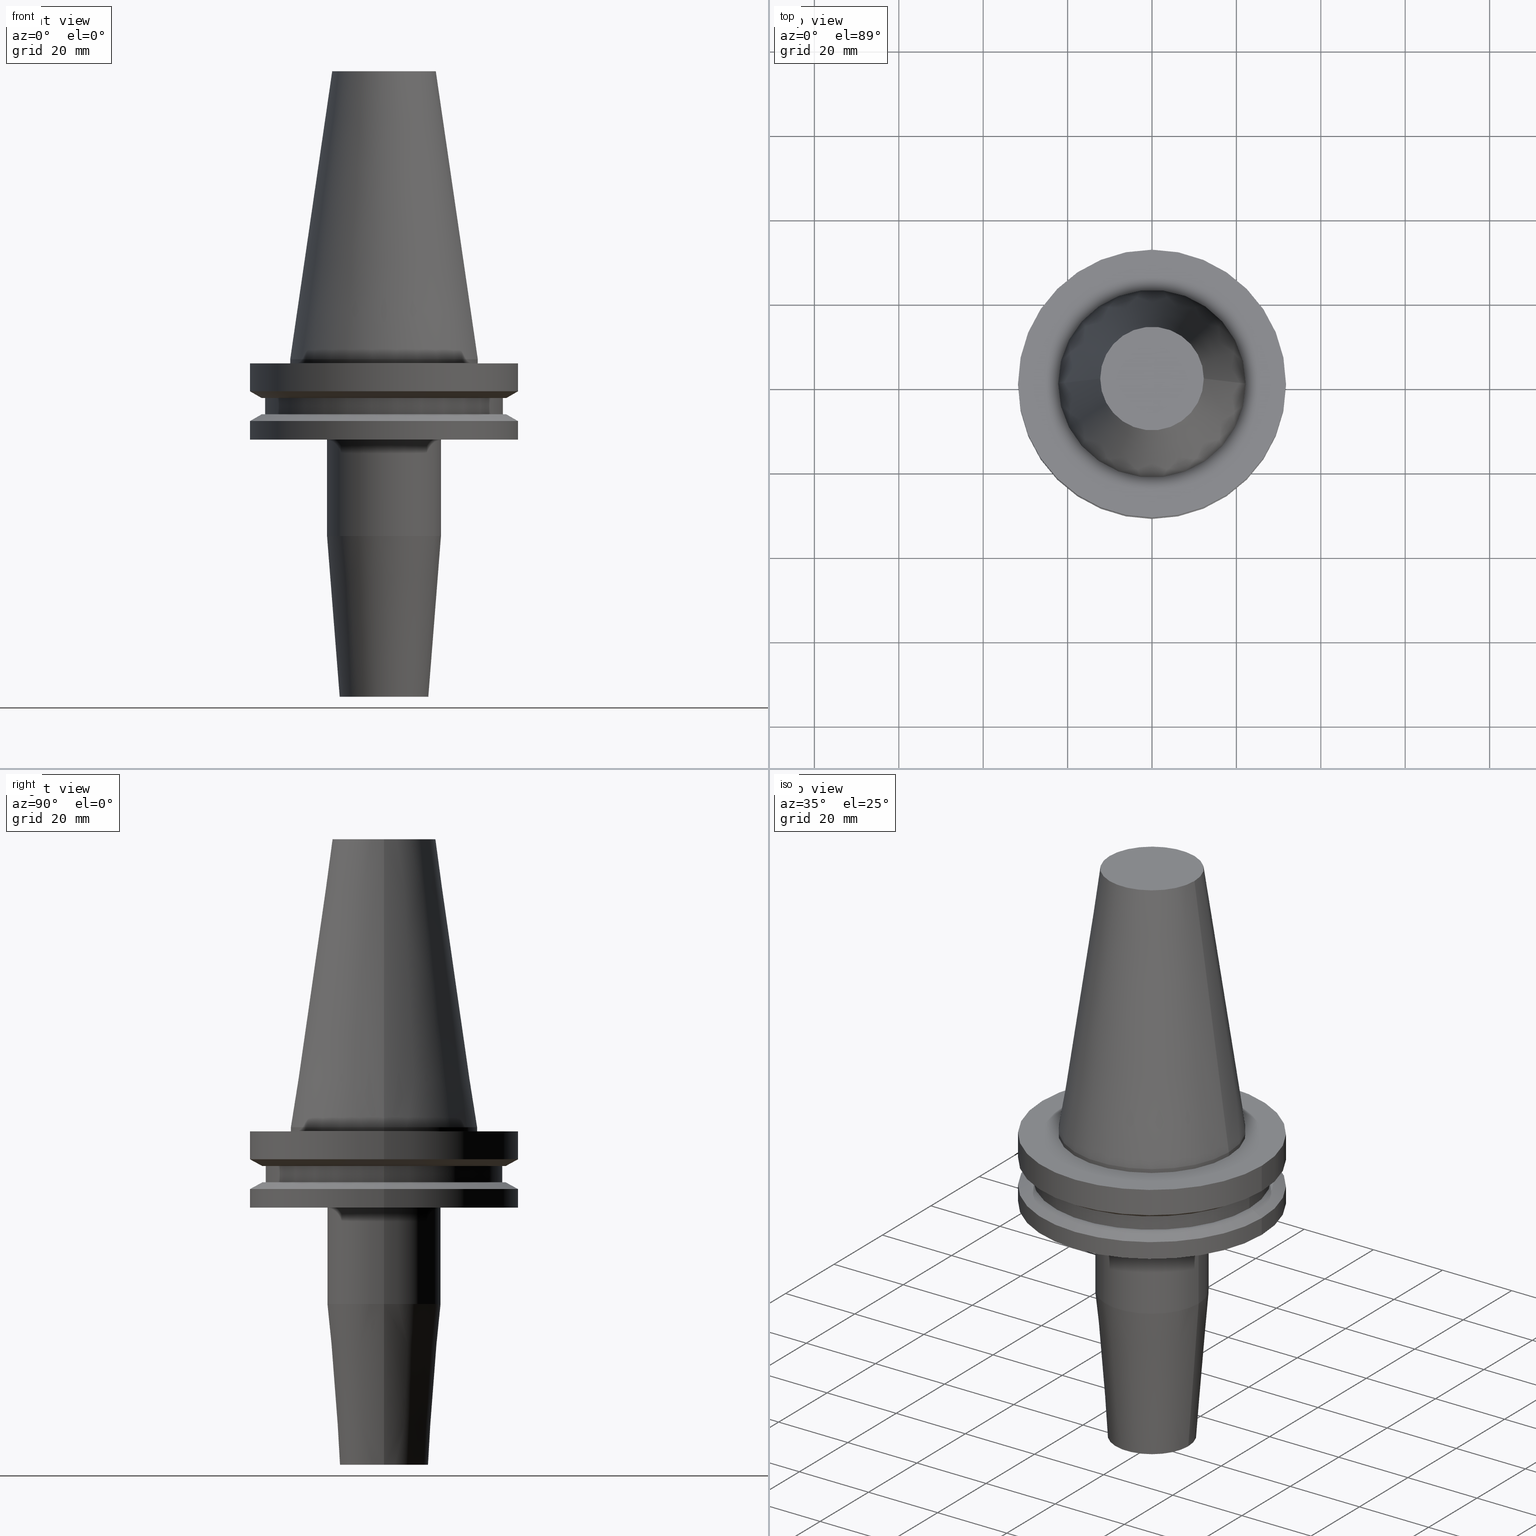
[diagram: canonical four-view strip — front | top / right | iso, engineering-drawing reading convention]
A machine part, canonical four-view strip (front | top / right | iso — engineering-drawing reading convention). The complete STEP part file that produces these views, byte-faithful:
ISO-10303-21;
HEADER;
FILE_DESCRIPTION (( 'STEP AP203' ),
    '1' );
FILE_NAME ('BCV40-SF8-80.stp',
    '2022-02-23T17:12:58',
    ( '' ),
    ( '' ),
    'SwSTEP 2.0',
    'SolidWorks 2021',
    '' );
FILE_SCHEMA (( 'CONFIG_CONTROL_DESIGN' ));
ENDSEC;

DATA;
#1 = DIRECTION ( 'NONE',  ( 0.8660254037844387076, 1.060575238724906915E-16, -0.4999999999999998890 ) ) ;
#2 = VERTEX_POINT ( 'NONE', #262 ) ;
#3 = CARTESIAN_POINT ( 'NONE',  ( 0.000000000000000000, 0.000000000000000000, -9.204999999999991189 ) ) ;
#4 = PRODUCT_DEFINITION_FORMATION_WITH_SPECIFIED_SOURCE ( 'ANY', '', #571, .NOT_KNOWN. ) ;
#5 = CIRCLE ( 'NONE', #444, 13.49999999999999467 ) ;
#6 = CARTESIAN_POINT ( 'NONE',  ( 31.75000000000000000, 3.888253587292846476E-15, -14.65472339340266572 ) ) ;
#7 = AXIS2_PLACEMENT_3D ( 'NONE', #565, #741, #19 ) ;
#8 = EDGE_LOOP ( 'NONE', ( #357, #448, #562, #697 ) ) ;
#9 = DIRECTION ( 'NONE',  ( 1.000000000000000000, 0.000000000000000000, 0.000000000000000000 ) ) ;
#10 = PERSON_AND_ORGANIZATION_ROLE ( 'classification_officer' ) ;
#11 = ADVANCED_FACE ( 'NONE', ( #566 ), #746, .F. ) ;
#12 = DIRECTION ( 'NONE',  ( -0.000000000000000000, -0.000000000000000000, 1.000000000000000000 ) ) ;
#13 = ORIENTED_EDGE ( 'NONE', *, *, #487, .F. ) ;
#14 = FACE_OUTER_BOUND ( 'NONE', #679, .T. ) ;
#15 = DIRECTION ( 'NONE',  ( -1.000000000000000000, 0.000000000000000000, -0.000000000000000000 ) ) ;
#16 = VERTEX_POINT ( 'NONE', #629 ) ;
#17 = DIRECTION ( 'NONE',  ( -0.000000000000000000, -0.000000000000000000, 1.000000000000000000 ) ) ;
#18 = AXIS2_PLACEMENT_3D ( 'NONE', #373, #141, #370 ) ;
#19 = DIRECTION ( 'NONE',  ( 1.000000000000000000, 0.000000000000000000, 0.000000000000000000 ) ) ;
#20 = EDGE_CURVE ( 'NONE', #760, #604, #94, .T. ) ;
#21 = AXIS2_PLACEMENT_3D ( 'NONE', #207, #222, #399 ) ;
#22 = EDGE_LOOP ( 'NONE', ( #83, #595, #382, #346 ) ) ;
#23 = CIRCLE ( 'NONE', #214, 31.75000000000000000 ) ;
#24 = SECURITY_CLASSIFICATION ( '', '', #198 ) ;
#25 = EDGE_CURVE ( 'NONE', #659, #332, #46, .T. ) ;
#26 = DIRECTION ( 'NONE',  ( 0.000000000000000000, -0.000000000000000000, 1.000000000000000000 ) ) ;
#27 = COORDINATED_UNIVERSAL_TIME_OFFSET ( 6, 0, .BEHIND. ) ;
#28 = CARTESIAN_POINT ( 'NONE',  ( 0.000000000000000000, 0.000000000000000000, -13.05499999999999794 ) ) ;
#29 = EDGE_LOOP ( 'NONE', ( #432, #270, #37, #229 ) ) ;
#30 = CYLINDRICAL_SURFACE ( 'NONE', #705, 22.22500000000000142 ) ;
#31 = DATE_AND_TIME ( #739, #119 ) ;
#32 = CARTESIAN_POINT ( 'NONE',  ( 0.000000000000000000, 0.000000000000000000, 0.000000000000000000 ) ) ;
#33 = ORIENTED_EDGE ( 'NONE', *, *, #138, .F. ) ;
#34 = DIRECTION ( 'NONE',  ( 1.000000000000000000, 0.000000000000000000, 0.000000000000000000 ) ) ;
#35 = AXIS2_PLACEMENT_3D ( 'NONE', #358, #543, #239 ) ;
#36 = CARTESIAN_POINT ( 'NONE',  ( 0.000000000000000000, 0.000000000000000000, 68.25000000000000000 ) ) ;
#37 = ORIENTED_EDGE ( 'NONE', *, *, #153, .F. ) ;
#38 = CIRCLE ( 'NONE', #101, 12.27178102086201150 ) ;
#39 = CYLINDRICAL_SURFACE ( 'NONE', #313, 31.75000000000000000 ) ;
#40 = EDGE_CURVE ( 'NONE', #170, #693, #245, .T. ) ;
#41 = ORIENTED_EDGE ( 'NONE', *, *, #204, .F. ) ;
#42 = VERTEX_POINT ( 'NONE', #396 ) ;
#43 = DIRECTION ( 'NONE',  ( 0.000000000000000000, 0.000000000000000000, 1.000000000000000000 ) ) ;
#44 = EDGE_CURVE ( 'NONE', #170, #554, #336, .T. ) ;
#45 = CARTESIAN_POINT ( 'NONE',  ( 0.000000000000000000, 0.000000000000000000, -9.204999999999991189 ) ) ;
#46 = LINE ( 'NONE', #636, #588 ) ;
#47 = ORIENTED_EDGE ( 'NONE', *, *, #681, .T. ) ;
#48 = CC_DESIGN_APPROVAL ( #187, ( #633 ) ) ;
#49 = CARTESIAN_POINT ( 'NONE',  ( 0.000000000000000000, 0.000000000000000000, 68.25000000000000000 ) ) ;
#50 = LINE ( 'NONE', #520, #110 ) ;
#51 = ORIENTED_EDGE ( 'NONE', *, *, #204, .T. ) ;
#52 = FACE_OUTER_BOUND ( 'NONE', #103, .T. ) ;
#53 = ORIENTED_EDGE ( 'NONE', *, *, #704, .T. ) ;
#54 = ADVANCED_FACE ( 'NONE', ( #305 ), #236, .F. ) ;
#55 = EDGE_CURVE ( 'NONE', #42, #63, #601, .T. ) ;
#56 = DIRECTION ( 'NONE',  ( 1.000000000000000000, 0.000000000000000000, 0.000000000000000000 ) ) ;
#57 = AXIS2_PLACEMENT_3D ( 'NONE', #130, #546, #362 ) ;
#58 = ORIENTED_EDGE ( 'NONE', *, *, #605, .T. ) ;
#59 = CIRCLE ( 'NONE', #755, 3.999999999999991562 ) ;
#60 = PERSON_AND_ORGANIZATION_ROLE ( 'design_owner' ) ;
#61 = CIRCLE ( 'NONE', #492, 28.97919780457008088 ) ;
#62 = DIRECTION ( 'NONE',  ( -0.000000000000000000, -0.000000000000000000, 1.000000000000000000 ) ) ;
#63 = VERTEX_POINT ( 'NONE', #188 ) ;
#64 = DIRECTION ( 'NONE',  ( 0.000000000000000000, -0.000000000000000000, 1.000000000000000000 ) ) ;
#65 = EDGE_LOOP ( 'NONE', ( #369, #109, #196, #389 ) ) ;
#66 = CARTESIAN_POINT ( 'NONE',  ( 0.000000000000000000, 0.000000000000000000, -1.000000000000000888 ) ) ;
#67 = CYLINDRICAL_SURFACE ( 'NONE', #314, 28.17999999999999972 ) ;
#68 = EDGE_LOOP ( 'NONE', ( #238, #51, #242, #742 ) ) ;
#69 = DIRECTION ( 'NONE',  ( 0.07845909572783768549, 0.000000000000000000, 0.9969173337331286300 ) ) ;
#70 = ADVANCED_FACE ( 'NONE', ( #735 ), #324, .T. ) ;
#71 = APPROVAL_STATUS ( 'not_yet_approved' ) ;
#72 = VECTOR ( 'NONE', #172, 1000.000000000000000 ) ;
#73 = LINE ( 'NONE', #708, #491 ) ;
#74 = ORIENTED_EDGE ( 'NONE', *, *, #160, .T. ) ;
#75 = FACE_OUTER_BOUND ( 'NONE', #612, .T. ) ;
#76 = DIRECTION ( 'NONE',  ( -0.000000000000000000, -0.000000000000000000, 1.000000000000000000 ) ) ;
#77 = VERTEX_POINT ( 'NONE', #121 ) ;
#78 = FACE_OUTER_BOUND ( 'NONE', #99, .T. ) ;
#79 = EDGE_CURVE ( 'NONE', #284, #186, #285, .T. ) ;
#80 = APPROVAL_DATE_TIME ( #302, #106 ) ;
#81 = CYLINDRICAL_SURFACE ( 'NONE', #7, 13.49999999999999467 ) ;
#82 = EDGE_CURVE ( 'NONE', #63, #317, #551, .T. ) ;
#83 = ORIENTED_EDGE ( 'NONE', *, *, #487, .T. ) ;
#84 = CARTESIAN_POINT ( 'NONE',  ( -31.74999999999999289, 3.888253587292845687E-15, -19.04999999999999716 ) ) ;
#85 = AXIS2_PLACEMENT_3D ( 'NONE', #105, #516, #217 ) ;
#86 = DIRECTION ( 'NONE',  ( 1.000000000000000000, 0.000000000000000000, 0.000000000000000000 ) ) ;
#87 = AXIS2_PLACEMENT_3D ( 'NONE', #401, #574, #102 ) ;
#88 = ORIENTED_EDGE ( 'NONE', *, *, #630, .T. ) ;
#89 = CARTESIAN_POINT ( 'NONE',  ( 0.000000000000000000, 0.000000000000000000, 68.25000000000000000 ) ) ;
#90 = CARTESIAN_POINT ( 'NONE',  ( 0.000000000000000000, 31.75000000000000000, -0.9999999999999995559 ) ) ;
#91 = EDGE_LOOP ( 'NONE', ( #252, #246 ) ) ;
#92 = DIRECTION ( 'NONE',  ( 0.000000000000000000, -0.000000000000000000, 1.000000000000000000 ) ) ;
#93 = FACE_OUTER_BOUND ( 'NONE', #91, .T. ) ;
#94 = LINE ( 'NONE', #162, #221 ) ;
#95 = CARTESIAN_POINT ( 'NONE',  ( 0.000000000000000000, 0.000000000000000000, 0.000000000000000000 ) ) ;
#96 = CIRCLE ( 'NONE', #296, 28.17999999999999972 ) ;
#97 = EDGE_CURVE ( 'NONE', #645, #484, #614, .T. ) ;
#98 = DIRECTION ( 'NONE',  ( -0.000000000000000000, -0.000000000000000000, 1.000000000000000000 ) ) ;
#99 = EDGE_LOOP ( 'NONE', ( #47, #424 ) ) ;
#100 = AXIS2_PLACEMENT_3D ( 'NONE', #90, #548, #15 ) ;
#101 = AXIS2_PLACEMENT_3D ( 'NONE', #428, #440, #86 ) ;
#102 = DIRECTION ( 'NONE',  ( -1.000000000000000000, 0.000000000000000000, 0.000000000000000000 ) ) ;
#103 = EDGE_LOOP ( 'NONE', ( #235, #765, #754, #256 ) ) ;
#104 = CARTESIAN_POINT ( 'NONE',  ( 0.000000000000000000, 0.000000000000000000, 0.000000000000000000 ) ) ;
#105 = CARTESIAN_POINT ( 'NONE',  ( 0.000000000000000000, 0.000000000000000000, -1.000000000000000888 ) ) ;
#106 = APPROVAL ( #71, 'UNSPECIFIED' ) ;
#107 = DIRECTION ( 'NONE',  ( 1.000000000000000000, 0.000000000000000000, 0.000000000000000000 ) ) ;
#108 = DIRECTION ( 'NONE',  ( 1.000000000000000000, 0.000000000000000000, 0.000000000000000000 ) ) ;
#109 = ORIENTED_EDGE ( 'NONE', *, *, #55, .T. ) ;
#110 = VECTOR ( 'NONE', #762, 1000.000000000000000 ) ;
#111 = LINE ( 'NONE', #511, #288 ) ;
#112 = FACE_OUTER_BOUND ( 'NONE', #193, .T. ) ;
#113 = EDGE_LOOP ( 'NONE', ( #165, #572 ) ) ;
#114 = DIRECTION ( 'NONE',  ( 1.000000000000000000, 0.000000000000000000, 0.000000000000000000 ) ) ;
#115 = CARTESIAN_POINT ( 'NONE',  ( 28.97919780457007732, 0.000000000000000000, -9.205000000000005400 ) ) ;
#116 = CIRCLE ( 'NONE', #525, 31.74999999999999289 ) ;
#117 = VERTEX_POINT ( 'NONE', #430 ) ;
#118 = CIRCLE ( 'NONE', #542, 28.17999999999999972 ) ;
#119 = LOCAL_TIME ( 11, 12, 58.00000000000000000, #724 ) ;
#120 = DIRECTION ( 'NONE',  ( -0.000000000000000000, -0.000000000000000000, 1.000000000000000000 ) ) ;
#121 = CARTESIAN_POINT ( 'NONE',  ( 31.75000000000000000, 0.000000000000000000, -7.605276606597335842 ) ) ;
#122 = PERSON_AND_ORGANIZATION ( #178, #467 ) ;
#123 = ADVANCED_FACE ( 'NONE', ( #137 ), #232, .T. ) ;
#124 = LINE ( 'NONE', #466, #276 ) ;
#125 = VERTEX_POINT ( 'NONE', #84 ) ;
#126 = ADVANCED_FACE ( 'NONE', ( #14, #311 ), #660, .F. ) ;
#127 = DIRECTION ( 'NONE',  ( 1.000000000000000000, 0.000000000000000000, 0.000000000000000000 ) ) ;
#128 = CARTESIAN_POINT ( 'NONE',  ( 0.000000000000000000, 0.000000000000000000, -54.00000000000000711 ) ) ;
#129 = ORIENTED_EDGE ( 'NONE', *, *, #97, .T. ) ;
#130 = CARTESIAN_POINT ( 'NONE',  ( 0.000000000000000000, 0.000000000000000000, -80.00000000000000000 ) ) ;
#131 = PERSON_AND_ORGANIZATION ( #178, #467 ) ;
#132 = LOCAL_TIME ( 11, 12, 58.00000000000000000, #226 ) ;
#133 = CARTESIAN_POINT ( 'NONE',  ( 0.000000000000000000, 0.000000000000000000, -7.605276606597335842 ) ) ;
#134 = CIRCLE ( 'NONE', #267, 28.97919780457007732 ) ;
#135 = ORIENTED_EDGE ( 'NONE', *, *, #701, .F. ) ;
#136 = EDGE_CURVE ( 'NONE', #317, #287, #441, .T. ) ;
#137 = FACE_OUTER_BOUND ( 'NONE', #65, .T. ) ;
#138 = EDGE_CURVE ( 'NONE', #463, #675, #295, .T. ) ;
#139 = DIRECTION ( 'NONE',  ( -0.000000000000000000, -0.000000000000000000, 1.000000000000000000 ) ) ;
#140 = ORIENTED_EDGE ( 'NONE', *, *, #20, .T. ) ;
#141 = DIRECTION ( 'NONE',  ( -0.000000000000000000, -0.000000000000000000, 1.000000000000000000 ) ) ;
#142 = APPROVAL_ROLE ( '' ) ;
#143 = CARTESIAN_POINT ( 'NONE',  ( 0.000000000000000000, 0.000000000000000000, -1.000000000000000888 ) ) ;
#144 = ORIENTED_EDGE ( 'NONE', *, *, #153, .T. ) ;
#145 = AXIS2_PLACEMENT_3D ( 'NONE', #490, #183, #613 ) ;
#146 = CARTESIAN_POINT ( 'NONE',  ( 13.49999999999999467, 0.000000000000000000, -19.04999999999999716 ) ) ;
#147 = SHAPE_DEFINITION_REPRESENTATION ( #410, #517 ) ;
#148 = DIRECTION ( 'NONE',  ( 1.000000000000000000, 0.000000000000000000, 0.000000000000000000 ) ) ;
#149 = ORIENTED_EDGE ( 'NONE', *, *, #607, .T. ) ;
#150 = DIRECTION ( 'NONE',  ( -0.000000000000000000, -0.000000000000000000, 1.000000000000000000 ) ) ;
#151 = CARTESIAN_POINT ( 'NONE',  ( -22.22500000000000142, 2.721777511104992849E-15, 68.25000000000000000 ) ) ;
#152 = CARTESIAN_POINT ( 'NONE',  ( 0.000000000000000000, 0.000000000000000000, -13.05499999999999794 ) ) ;
#153 = EDGE_CURVE ( 'NONE', #332, #650, #96, .T. ) ;
#154 = DIRECTION ( 'NONE',  ( 1.000000000000000000, 0.000000000000000000, 0.000000000000000000 ) ) ;
#155 =( NAMED_UNIT ( * ) SI_UNIT ( $, .STERADIAN. ) SOLID_ANGLE_UNIT ( ) );
#156 = ORIENTED_EDGE ( 'NONE', *, *, #271, .F. ) ;
#157 =( NAMED_UNIT ( * ) PLANE_ANGLE_UNIT ( ) SI_UNIT ( $, .RADIAN. ) );
#158 = CARTESIAN_POINT ( 'NONE',  ( 0.000000000000000000, 12.27178102086201150, 68.25000000000000000 ) ) ;
#159 = CIRCLE ( 'NONE', #756, 31.75000000000000000 ) ;
#160 = EDGE_CURVE ( 'NONE', #320, #377, #738, .T. ) ;
#161 = ADVANCED_FACE ( 'NONE', ( #197 ), #552, .T. ) ;
#162 = CARTESIAN_POINT ( 'NONE',  ( -22.22500000000000142, 0.000000000000000000, 0.000000000000000000 ) ) ;
#163 = CARTESIAN_POINT ( 'NONE',  ( 0.000000000000000000, 0.000000000000000000, -9.205000000000005400 ) ) ;
#164 = DIRECTION ( 'NONE',  ( -0.000000000000000000, -0.000000000000000000, 1.000000000000000000 ) ) ;
#165 = ORIENTED_EDGE ( 'NONE', *, *, #40, .F. ) ;
#166 = FACE_OUTER_BOUND ( 'NONE', #175, .T. ) ;
#167 = DIRECTION ( 'NONE',  ( -0.000000000000000000, -0.000000000000000000, 1.000000000000000000 ) ) ;
#168 = AXIS2_PLACEMENT_3D ( 'NONE', #28, #684, #620 ) ;
#169 = CARTESIAN_POINT ( 'NONE',  ( 0.000000000000000000, 0.000000000000000000, -14.65472339340266572 ) ) ;
#170 = VERTEX_POINT ( 'NONE', #434 ) ;
#171 = ADVANCED_FACE ( 'NONE', ( #676, #78 ), #299, .F. ) ;
#172 = DIRECTION ( 'NONE',  ( -0.000000000000000000, -0.000000000000000000, 1.000000000000000000 ) ) ;
#173 = DATE_AND_TIME ( #714, #132 ) ;
#174 = FACE_OUTER_BOUND ( 'NONE', #454, .T. ) ;
#175 = EDGE_LOOP ( 'NONE', ( #350, #277, #625, #415 ) ) ;
#176 =( GEOMETRIC_REPRESENTATION_CONTEXT ( 3 ) GLOBAL_UNCERTAINTY_ASSIGNED_CONTEXT ( ( #450 ) ) GLOBAL_UNIT_ASSIGNED_CONTEXT ( ( #692, #157, #155 ) ) REPRESENTATION_CONTEXT ( 'NONE', 'WORKASPACE' ) );
#177 = CARTESIAN_POINT ( 'NONE',  ( 3.999999999999994671, 0.000000000000000000, -80.00000000000000000 ) ) ;
#178 = PERSON ( 'UNSPECIFIED', 'UNSPECIFIED', 'UNSPECIFIED', ('UNSPECIFIED'), ('UNSPECIFIED'), ('UNSPECIFIED') ) ;
#179 = ORIENTED_EDGE ( 'NONE', *, *, #536, .F. ) ;
#180 = DIRECTION ( 'NONE',  ( 1.000000000000000000, 0.000000000000000000, 0.000000000000000000 ) ) ;
#181 = DIRECTION ( 'NONE',  ( 1.000000000000000000, 0.000000000000000000, 0.000000000000000000 ) ) ;
#182 = ORIENTED_EDGE ( 'NONE', *, *, #40, .T. ) ;
#183 = DIRECTION ( 'NONE',  ( 0.000000000000000000, -0.000000000000000000, 1.000000000000000000 ) ) ;
#184 = APPROVAL_ROLE ( '' ) ;
#185 = CARTESIAN_POINT ( 'NONE',  ( -3.999999999999994671, 4.898587196589406912E-16, -80.00000000000000000 ) ) ;
#186 = VERTEX_POINT ( 'NONE', #308 ) ;
#187 = APPROVAL ( #522, 'UNSPECIFIED' ) ;
#188 = CARTESIAN_POINT ( 'NONE',  ( -31.75000000000000000, 3.888253587292846476E-15, -7.605276606597335842 ) ) ;
#189 = AXIS2_PLACEMENT_3D ( 'NONE', #577, #519, #107 ) ;
#190 = AXIS2_PLACEMENT_3D ( 'NONE', #553, #730, #261 ) ;
#191 = FACE_OUTER_BOUND ( 'NONE', #771, .T. ) ;
#192 = CIRCLE ( 'NONE', #403, 28.97919780457007732 ) ;
#193 = EDGE_LOOP ( 'NONE', ( #13, #41 ) ) ;
#194 = DIRECTION ( 'NONE',  ( -0.000000000000000000, -0.000000000000000000, 1.000000000000000000 ) ) ;
#195 = DIRECTION ( 'NONE',  ( 1.000000000000000000, 0.000000000000000000, 0.000000000000000000 ) ) ;
#196 = ORIENTED_EDGE ( 'NONE', *, *, #630, .F. ) ;
#197 = FACE_OUTER_BOUND ( 'NONE', #437, .T. ) ;
#198 = SECURITY_CLASSIFICATION_LEVEL ( 'unclassified' ) ;
#199 = DIRECTION ( 'NONE',  ( 1.000000000000000000, 0.000000000000000000, 0.000000000000000000 ) ) ;
#200 = ORIENTED_EDGE ( 'NONE', *, *, #326, .T. ) ;
#201 = CARTESIAN_POINT ( 'NONE',  ( 31.74999999999999289, 0.000000000000000000, -19.04999999999999716 ) ) ;
#202 = CARTESIAN_POINT ( 'NONE',  ( -13.49999999999999467, 1.653273178848926275E-15, 0.000000000000000000 ) ) ;
#203 = AXIS2_PLACEMENT_3D ( 'NONE', #36, #98, #215 ) ;
#204 = EDGE_CURVE ( 'NONE', #125, #280, #116, .T. ) ;
#205 = DIRECTION ( 'NONE',  ( -1.000000000000000000, 0.000000000000000000, -0.000000000000000000 ) ) ;
#206 = VECTOR ( 'NONE', #736, 1000.000000000000000 ) ;
#207 = CARTESIAN_POINT ( 'NONE',  ( 0.000000000000000000, 0.000000000000000000, -14.65472339340266572 ) ) ;
#208 = ORIENTED_EDGE ( 'NONE', *, *, #82, .F. ) ;
#209 = ADVANCED_FACE ( 'NONE', ( #75 ), #243, .T. ) ;
#210 = EDGE_LOOP ( 'NONE', ( #774, #420, #149, #600 ) ) ;
#211 = EDGE_CURVE ( 'NONE', #186, #284, #390, .T. ) ;
#212 = APPLICATION_PROTOCOL_DEFINITION ( 'international standard', 'config_control_design', 1994, #641 ) ;
#213 = ORIENTED_EDGE ( 'NONE', *, *, #211, .T. ) ;
#214 = AXIS2_PLACEMENT_3D ( 'NONE', #436, #498, #561 ) ;
#215 = DIRECTION ( 'NONE',  ( 1.000000000000000000, 0.000000000000000000, 0.000000000000000000 ) ) ;
#216 = DIRECTION ( 'NONE',  ( -0.000000000000000000, -0.000000000000000000, 1.000000000000000000 ) ) ;
#217 = DIRECTION ( 'NONE',  ( 1.000000000000000000, 0.000000000000000000, 0.000000000000000000 ) ) ;
#218 = FACE_OUTER_BOUND ( 'NONE', #224, .T. ) ;
#219 = FACE_OUTER_BOUND ( 'NONE', #657, .T. ) ;
#220 = ORIENTED_EDGE ( 'NONE', *, *, #681, .F. ) ;
#221 = VECTOR ( 'NONE', #578, 999.9999999999998863 ) ;
#222 = DIRECTION ( 'NONE',  ( 0.000000000000000000, 0.000000000000000000, -1.000000000000000000 ) ) ;
#223 = ADVANCED_FACE ( 'NONE', ( #503 ), #30, .T. ) ;
#224 = EDGE_LOOP ( 'NONE', ( #88, #495, #411, #540 ) ) ;
#225 = VECTOR ( 'NONE', #352, 1000.000000000000000 ) ;
#226 = COORDINATED_UNIVERSAL_TIME_OFFSET ( 6, 0, .BEHIND. ) ;
#227 = DIRECTION ( 'NONE',  ( 1.000000000000000000, 0.000000000000000000, 0.000000000000000000 ) ) ;
#228 = CARTESIAN_POINT ( 'NONE',  ( 0.000000000000000000, 0.000000000000000000, -7.605276606597335842 ) ) ;
#229 = ORIENTED_EDGE ( 'NONE', *, *, #25, .F. ) ;
#230 = CC_DESIGN_DATE_AND_TIME_ASSIGNMENT ( #31, #439, ( #24 ) ) ;
#231 = DATE_AND_TIME ( #531, #445 ) ;
#232 = CONICAL_SURFACE ( 'NONE', #18, 28.97919780457007732, 1.047197551196598297 ) ;
#233 = CARTESIAN_POINT ( 'NONE',  ( -3.999999999999991562, 4.898587196589403954E-16, -54.00000000000000711 ) ) ;
#234 = AXIS2_PLACEMENT_3D ( 'NONE', #95, #167, #154 ) ;
#235 = ORIENTED_EDGE ( 'NONE', *, *, #549, .F. ) ;
#236 = PLANE ( 'NONE',  #145 ) ;
#237 = CARTESIAN_POINT ( 'NONE',  ( 0.000000000000000000, 0.000000000000000000, 0.000000000000000000 ) ) ;
#238 = ORIENTED_EDGE ( 'NONE', *, *, #260, .F. ) ;
#239 = DIRECTION ( 'NONE',  ( -1.000000000000000000, 0.000000000000000000, -0.000000000000000000 ) ) ;
#240 = EDGE_CURVE ( 'NONE', #272, #700, #538, .T. ) ;
#241 = LINE ( 'NONE', #151, #392 ) ;
#242 = ORIENTED_EDGE ( 'NONE', *, *, #397, .T. ) ;
#243 = CYLINDRICAL_SURFACE ( 'NONE', #234, 13.49999999999999467 ) ;
#244 = CARTESIAN_POINT ( 'NONE',  ( 22.22500000000000142, 2.721777511104992849E-15, 0.000000000000000000 ) ) ;
#245 = CIRCLE ( 'NONE', #85, 22.22500000000000142 ) ;
#246 = ORIENTED_EDGE ( 'NONE', *, *, #136, .T. ) ;
#247 = DIRECTION ( 'NONE',  ( -0.07845909572783768549, 9.608468044709219864E-18, 0.9969173337331286300 ) ) ;
#248 = VECTOR ( 'NONE', #582, 1000.000000000000000 ) ;
#249 = AXIS2_PLACEMENT_3D ( 'NONE', #128, #647, #474 ) ;
#250 = CIRCLE ( 'NONE', #696, 12.27178102086201150 ) ;
#251 = CARTESIAN_POINT ( 'NONE',  ( 31.75000000000000000, 0.000000000000000000, 68.25000000000000000 ) ) ;
#252 = ORIENTED_EDGE ( 'NONE', *, *, #576, .T. ) ;
#253 = CARTESIAN_POINT ( 'NONE',  ( 0.000000000000000000, 0.000000000000000000, -80.00000000000000000 ) ) ;
#254 = PERSON_AND_ORGANIZATION_ROLE ( 'creator' ) ;
#255 = CARTESIAN_POINT ( 'NONE',  ( 0.000000000000000000, 0.000000000000000000, -80.00000000000000000 ) ) ;
#256 = ORIENTED_EDGE ( 'NONE', *, *, #704, .F. ) ;
#257 = ADVANCED_FACE ( 'NONE', ( #325 ), #653, .T. ) ;
#258 = CARTESIAN_POINT ( 'NONE',  ( 0.000000000000000000, 0.000000000000000000, -19.04999999999999716 ) ) ;
#259 = COORDINATED_UNIVERSAL_TIME_OFFSET ( 6, 0, .BEHIND. ) ;
#260 = EDGE_CURVE ( 'NONE', #125, #272, #680, .T. ) ;
#261 = DIRECTION ( 'NONE',  ( 1.000000000000000000, 0.000000000000000000, 0.000000000000000000 ) ) ;
#262 = CARTESIAN_POINT ( 'NONE',  ( 3.999999999999991562, 0.000000000000000000, -54.00000000000000711 ) ) ;
#263 = DIRECTION ( 'NONE',  ( -0.000000000000000000, -0.000000000000000000, 1.000000000000000000 ) ) ;
#264 = DIRECTION ( 'NONE',  ( -0.000000000000000000, -0.000000000000000000, 1.000000000000000000 ) ) ;
#265 = AXIS2_PLACEMENT_3D ( 'NONE', #703, #92, #34 ) ;
#266 = ORIENTED_EDGE ( 'NONE', *, *, #329, .T. ) ;
#267 = AXIS2_PLACEMENT_3D ( 'NONE', #163, #698, #761 ) ;
#268 = ADVANCED_FACE ( 'NONE', ( #387, #112 ), #342, .F. ) ;
#269 = CARTESIAN_POINT ( 'NONE',  ( -12.27178102086201150, 0.000000000000000000, 68.25000000000000000 ) ) ;
#270 = ORIENTED_EDGE ( 'NONE', *, *, #408, .T. ) ;
#271 = EDGE_CURVE ( 'NONE', #650, #332, #581, .T. ) ;
#272 = VERTEX_POINT ( 'NONE', #500 ) ;
#273 = DIRECTION ( 'NONE',  ( 1.000000000000000000, 0.000000000000000000, 0.000000000000000000 ) ) ;
#274 = DIRECTION ( 'NONE',  ( -0.000000000000000000, -0.000000000000000000, 1.000000000000000000 ) ) ;
#275 = AXIS2_PLACEMENT_3D ( 'NONE', #388, #458, #580 ) ;
#276 = VECTOR ( 'NONE', #409, 1000.000000000000000 ) ;
#277 = ORIENTED_EDGE ( 'NONE', *, *, #138, .T. ) ;
#278 = FACE_OUTER_BOUND ( 'NONE', #394, .T. ) ;
#279 = CARTESIAN_POINT ( 'NONE',  ( 0.000000000000000000, 0.000000000000000000, 68.25000000000000000 ) ) ;
#280 = VERTEX_POINT ( 'NONE', #201 ) ;
#281 = MECHANICAL_CONTEXT ( 'NONE', #641, 'mechanical' ) ;
#282 = ADVANCED_FACE ( 'NONE', ( #52 ), #638, .T. ) ;
#283 = CARTESIAN_POINT ( 'NONE',  ( 31.75000000000000000, 0.000000000000000000, -1.000000000000000888 ) ) ;
#284 = VERTEX_POINT ( 'NONE', #146 ) ;
#285 = CIRCLE ( 'NONE', #337, 13.49999999999999467 ) ;
#286 = CARTESIAN_POINT ( 'NONE',  ( 13.49999999999999467, 0.000000000000000000, -41.88138579147233997 ) ) ;
#287 = VERTEX_POINT ( 'NONE', #283 ) ;
#288 = VECTOR ( 'NONE', #328, 999.9999999999998863 ) ;
#289 = EDGE_CURVE ( 'NONE', #469, #659, #688, .T. ) ;
#290 = CYLINDRICAL_SURFACE ( 'NONE', #589, 3.999999999999993339 ) ;
#291 = ADVANCED_FACE ( 'NONE', ( #743 ), #763, .F. ) ;
#292 = PERSON_AND_ORGANIZATION ( #178, #467 ) ;
#293 = DIRECTION ( 'NONE',  ( -1.000000000000000000, 0.000000000000000000, 0.000000000000000000 ) ) ;
#294 = ORIENTED_EDGE ( 'NONE', *, *, #772, .F. ) ;
#295 = LINE ( 'NONE', #535, #639 ) ;
#296 = AXIS2_PLACEMENT_3D ( 'NONE', #3, #426, #9 ) ;
#297 = DIRECTION ( 'NONE',  ( -0.000000000000000000, -0.000000000000000000, 1.000000000000000000 ) ) ;
#298 = ORIENTED_EDGE ( 'NONE', *, *, #347, .T. ) ;
#299 = PLANE ( 'NONE',  #35 ) ;
#300 = CIRCLE ( 'NONE', #363, 22.22500000000000142 ) ;
#301 = APPROVAL_PERSON_ORGANIZATION ( #355, #187, #405 ) ;
#302 = DATE_AND_TIME ( #557, #366 ) ;
#303 = CARTESIAN_POINT ( 'NONE',  ( 0.000000000000000000, 0.000000000000000000, -80.00000000000000000 ) ) ;
#304 = ORIENTED_EDGE ( 'NONE', *, *, #408, .F. ) ;
#305 = FACE_OUTER_BOUND ( 'NONE', #473, .T. ) ;
#306 = CARTESIAN_POINT ( 'NONE',  ( -13.49999999999999467, 1.653273178848926275E-15, -41.88138579147233997 ) ) ;
#307 = ORIENTED_EDGE ( 'NONE', *, *, #536, .T. ) ;
#308 = CARTESIAN_POINT ( 'NONE',  ( -13.49999999999999467, 1.653273178848926275E-15, -19.04999999999999716 ) ) ;
#309 = DIRECTION ( 'NONE',  ( -0.000000000000000000, -0.000000000000000000, 1.000000000000000000 ) ) ;
#310 = ORIENTED_EDGE ( 'NONE', *, *, #329, .F. ) ;
#311 = FACE_BOUND ( 'NONE', #442, .T. ) ;
#312 = CALENDAR_DATE ( 2022, 23, 2 ) ;
#313 = AXIS2_PLACEMENT_3D ( 'NONE', #49, #461, #335 ) ;
#314 = AXIS2_PLACEMENT_3D ( 'NONE', #414, #12, #526 ) ;
#315 = CARTESIAN_POINT ( 'NONE',  ( 0.000000000000000000, 0.000000000000000000, -9.205000000000005400 ) ) ;
#316 = ADVANCED_FACE ( 'NONE', ( #758 ), #687, .T. ) ;
#317 = VERTEX_POINT ( 'NONE', #318 ) ;
#318 = CARTESIAN_POINT ( 'NONE',  ( -31.75000000000000000, 3.888253587292846476E-15, -1.000000000000000888 ) ) ;
#319 = FACE_OUTER_BOUND ( 'NONE', #524, .T. ) ;
#320 = VERTEX_POINT ( 'NONE', #560 ) ;
#321 = LINE ( 'NONE', #563, #568 ) ;
#322 = DIRECTION ( 'NONE',  ( -0.000000000000000000, -0.000000000000000000, 1.000000000000000000 ) ) ;
#323 = ORIENTED_EDGE ( 'NONE', *, *, #44, .F. ) ;
#324 = CONICAL_SURFACE ( 'NONE', #427, 28.97919780457007732, 1.047197551196598297 ) ;
#325 = FACE_OUTER_BOUND ( 'NONE', #210, .T. ) ;
#326 = EDGE_CURVE ( 'NONE', #377, #284, #321, .T. ) ;
#327 = AXIS2_PLACEMENT_3D ( 'NONE', #623, #263, #644 ) ;
#328 = DIRECTION ( 'NONE',  ( 0.1443082272672999711, 1.767266086135276757E-17, -0.9895327864921755756 ) ) ;
#329 = EDGE_CURVE ( 'NONE', #675, #377, #5, .T. ) ;
#330 = AXIS2_PLACEMENT_3D ( 'NONE', #356, #64, #114 ) ;
#331 = VECTOR ( 'NONE', #1, 1000.000000000000000 ) ;
#332 = VERTEX_POINT ( 'NONE', #567 ) ;
#333 = AXIS2_PLACEMENT_3D ( 'NONE', #628, #341, #632 ) ;
#334 = EDGE_LOOP ( 'NONE', ( #592, #213 ) ) ;
#335 = DIRECTION ( 'NONE',  ( 1.000000000000000000, 0.000000000000000000, 0.000000000000000000 ) ) ;
#336 = LINE ( 'NONE', #460, #665 ) ;
#337 = AXIS2_PLACEMENT_3D ( 'NONE', #354, #597, #478 ) ;
#338 = DIRECTION ( 'NONE',  ( -0.000000000000000000, -0.000000000000000000, 1.000000000000000000 ) ) ;
#339 = DIRECTION ( 'NONE',  ( 1.000000000000000000, 0.000000000000000000, 0.000000000000000000 ) ) ;
#340 = CC_DESIGN_DATE_AND_TIME_ASSIGNMENT ( #231, #418, ( #633 ) ) ;
#341 = DIRECTION ( 'NONE',  ( -0.000000000000000000, -0.000000000000000000, 1.000000000000000000 ) ) ;
#342 = PLANE ( 'NONE',  #265 ) ;
#343 = ORIENTED_EDGE ( 'NONE', *, *, #136, .F. ) ;
#344 = APPLICATION_CONTEXT ( 'configuration controlled 3d designs of mechanical parts and assemblies' ) ;
#345 = FACE_OUTER_BOUND ( 'NONE', #726, .T. ) ;
#346 = ORIENTED_EDGE ( 'NONE', *, *, #397, .F. ) ;
#347 = EDGE_CURVE ( 'NONE', #645, #457, #50, .T. ) ;
#348 = ADVANCED_FACE ( 'NONE', ( #219 ), #480, .T. ) ;
#349 = FACE_BOUND ( 'NONE', #113, .T. ) ;
#350 = ORIENTED_EDGE ( 'NONE', *, *, #533, .T. ) ;
#351 = AXIS2_PLACEMENT_3D ( 'NONE', #228, #360, #227 ) ;
#352 = DIRECTION ( 'NONE',  ( -0.8660254037844387076, 0.000000000000000000, -0.4999999999999998890 ) ) ;
#353 = ORIENTED_EDGE ( 'NONE', *, *, #713, .T. ) ;
#354 = CARTESIAN_POINT ( 'NONE',  ( 0.000000000000000000, 0.000000000000000000, -19.04999999999999716 ) ) ;
#355 = PERSON_AND_ORGANIZATION ( #178, #467 ) ;
#356 = CARTESIAN_POINT ( 'NONE',  ( 0.000000000000000000, 28.97919780457007732, -9.204999999999996518 ) ) ;
#357 = ORIENTED_EDGE ( 'NONE', *, *, #55, .F. ) ;
#358 = CARTESIAN_POINT ( 'NONE',  ( 0.000000000000000000, 28.17999999999999972, -13.05499999999999794 ) ) ;
#359 = AXIS2_PLACEMENT_3D ( 'NONE', #253, #194, #180 ) ;
#360 = DIRECTION ( 'NONE',  ( -0.000000000000000000, -0.000000000000000000, 1.000000000000000000 ) ) ;
#361 = ORIENTED_EDGE ( 'NONE', *, *, #547, .T. ) ;
#362 = DIRECTION ( 'NONE',  ( 1.000000000000000000, 0.000000000000000000, 0.000000000000000000 ) ) ;
#363 = AXIS2_PLACEMENT_3D ( 'NONE', #237, #649, #590 ) ;
#364 = VECTOR ( 'NONE', #264, 1000.000000000000000 ) ;
#365 = EDGE_CURVE ( 'NONE', #554, #604, #300, .T. ) ;
#366 = LOCAL_TIME ( 11, 12, 58.00000000000000000, #259 ) ;
#367 = CIRCLE ( 'NONE', #631, 31.75000000000000000 ) ;
#368 = DIRECTION ( 'NONE',  ( 1.000000000000000000, 0.000000000000000000, 0.000000000000000000 ) ) ;
#369 = ORIENTED_EDGE ( 'NONE', *, *, #701, .T. ) ;
#370 = DIRECTION ( 'NONE',  ( 1.000000000000000000, 0.000000000000000000, 0.000000000000000000 ) ) ;
#371 = CARTESIAN_POINT ( 'NONE',  ( 28.97919780457008088, 3.718590885307660666E-15, -13.05499999999999794 ) ) ;
#372 = ORIENTED_EDGE ( 'NONE', *, *, #79, .F. ) ;
#373 = CARTESIAN_POINT ( 'NONE',  ( 0.000000000000000000, 0.000000000000000000, -9.205000000000005400 ) ) ;
#374 = EDGE_CURVE ( 'NONE', #484, #645, #504, .T. ) ;
#375 = CARTESIAN_POINT ( 'NONE',  ( -28.17999999999999972, 3.451054679997241634E-15, -9.204999999999991189 ) ) ;
#376 = CC_DESIGN_PERSON_AND_ORGANIZATION_ASSIGNMENT ( #666, #10, ( #24 ) ) ;
#377 = VERTEX_POINT ( 'NONE', #286 ) ;
#378 = CARTESIAN_POINT ( 'NONE',  ( 0.000000000000000000, 0.000000000000000000, 0.000000000000000000 ) ) ;
#379 = PERSON_AND_ORGANIZATION_ROLE ( 'design_supplier' ) ;
#380 = CARTESIAN_POINT ( 'NONE',  ( 28.17999999999999972, 0.000000000000000000, -13.05499999999999794 ) ) ;
#381 = APPROVAL_PERSON_ORGANIZATION ( #122, #391, #142 ) ;
#382 = ORIENTED_EDGE ( 'NONE', *, *, #607, .F. ) ;
#383 = DIRECTION ( 'NONE',  ( 1.000000000000000000, 0.000000000000000000, 0.000000000000000000 ) ) ;
#384 = DIRECTION ( 'NONE',  ( -0.000000000000000000, -0.000000000000000000, 1.000000000000000000 ) ) ;
#385 = EDGE_CURVE ( 'NONE', #2, #457, #59, .T. ) ;
#386 = ORIENTED_EDGE ( 'NONE', *, *, #240, .T. ) ;
#387 = FACE_BOUND ( 'NONE', #334, .T. ) ;
#388 = CARTESIAN_POINT ( 'NONE',  ( 0.000000000000000000, 0.000000000000000000, -41.88138579147233997 ) ) ;
#389 = ORIENTED_EDGE ( 'NONE', *, *, #489, .F. ) ;
#390 = CIRCLE ( 'NONE', #602, 13.49999999999999467 ) ;
#391 = APPROVAL ( #598, 'UNSPECIFIED' ) ;
#392 = VECTOR ( 'NONE', #483, 1000.000000000000000 ) ;
#393 = LOCAL_TIME ( 11, 12, 58.00000000000000000, #27 ) ;
#394 = EDGE_LOOP ( 'NONE', ( #663, #609, #140, #53 ) ) ;
#395 = DIRECTION ( 'NONE',  ( 0.000000000000000000, 0.000000000000000000, -1.000000000000000000 ) ) ;
#396 = CARTESIAN_POINT ( 'NONE',  ( -28.97919780457007732, 3.718590885307660666E-15, -9.205000000000005400 ) ) ;
#397 = EDGE_CURVE ( 'NONE', #280, #700, #599, .T. ) ;
#398 = FACE_OUTER_BOUND ( 'NONE', #68, .T. ) ;
#399 = DIRECTION ( 'NONE',  ( -1.000000000000000000, 0.000000000000000000, 0.000000000000000000 ) ) ;
#400 = ADVANCED_FACE ( 'NONE', ( #174 ), #290, .F. ) ;
#401 = CARTESIAN_POINT ( 'NONE',  ( 0.000000000000000000, 0.000000000000000000, 0.000000000000000000 ) ) ;
#402 = DIRECTION ( 'NONE',  ( 1.000000000000000000, 0.000000000000000000, 0.000000000000000000 ) ) ;
#403 = AXIS2_PLACEMENT_3D ( 'NONE', #315, #558, #608 ) ;
#404 = ORIENTED_EDGE ( 'NONE', *, *, #97, .F. ) ;
#405 = APPROVAL_ROLE ( '' ) ;
#406 = CARTESIAN_POINT ( 'NONE',  ( -31.75000000000000000, 0.000000000000000000, -14.65472339340266572 ) ) ;
#407 = EDGE_CURVE ( 'NONE', #16, #272, #658, .T. ) ;
#408 = EDGE_CURVE ( 'NONE', #469, #650, #73, .T. ) ;
#409 = DIRECTION ( 'NONE',  ( 0.8660254037844389297, 0.000000000000000000, 0.4999999999999995004 ) ) ;
#410 = PRODUCT_DEFINITION_SHAPE ( 'NONE', 'NONE',  #633 ) ;
#411 = ORIENTED_EDGE ( 'NONE', *, *, #576, .F. ) ;
#412 = CLOSED_SHELL ( 'NONE', ( #291, #727, #573, #223, #740, #123, #470, #257, #749, #685, #768, #11, #268, #711, #435, #171, #316, #422, #70, #348, #508, #282, #209, #161, #126, #400, #54 ) ) ;
#413 = PERSON_AND_ORGANIZATION ( #178, #467 ) ;
#414 = CARTESIAN_POINT ( 'NONE',  ( 0.000000000000000000, 0.000000000000000000, 68.25000000000000000 ) ) ;
#415 = ORIENTED_EDGE ( 'NONE', *, *, #160, .F. ) ;
#416 = CONICAL_SURFACE ( 'NONE', #87, 22.22500000000000142, 0.1448138465474119174 ) ;
#417 = AXIS2_PLACEMENT_3D ( 'NONE', #710, #297, #537 ) ;
#418 = DATE_TIME_ROLE ( 'creation_date' ) ;
#419 = CARTESIAN_POINT ( 'NONE',  ( 31.75000000000000000, 0.000000000000000000, 68.25000000000000000 ) ) ;
#420 = ORIENTED_EDGE ( 'NONE', *, *, #479, .T. ) ;
#421 = CARTESIAN_POINT ( 'NONE',  ( -31.75000000000000000, 3.888253587292846476E-15, 68.25000000000000000 ) ) ;
#422 = ADVANCED_FACE ( 'NONE', ( #594, #662 ), #718, .F. ) ;
#423 = CARTESIAN_POINT ( 'NONE',  ( 0.000000000000000000, 0.000000000000000000, 0.000000000000000000 ) ) ;
#424 = ORIENTED_EDGE ( 'NONE', *, *, #564, .T. ) ;
#425 = CC_DESIGN_PERSON_AND_ORGANIZATION_ASSIGNMENT ( #677, #379, ( #4 ) ) ;
#426 = DIRECTION ( 'NONE',  ( -0.000000000000000000, -0.000000000000000000, 1.000000000000000000 ) ) ;
#427 = AXIS2_PLACEMENT_3D ( 'NONE', #610, #672, #728 ) ;
#428 = CARTESIAN_POINT ( 'NONE',  ( 0.000000000000000000, 0.000000000000000000, 68.25000000000000000 ) ) ;
#429 = EDGE_LOOP ( 'NONE', ( #550, #58 ) ) ;
#430 = CARTESIAN_POINT ( 'NONE',  ( 12.27178102086201150, 2.112318622904291439E-15, 68.25000000000000000 ) ) ;
#431 = CARTESIAN_POINT ( 'NONE',  ( 0.000000000000000000, 0.000000000000000000, -1.000000000000000888 ) ) ;
#432 = ORIENTED_EDGE ( 'NONE', *, *, #585, .T. ) ;
#433 = EDGE_CURVE ( 'NONE', #457, #2, #766, .T. ) ;
#434 = CARTESIAN_POINT ( 'NONE',  ( 22.22500000000000142, 0.000000000000000000, -1.000000000000000888 ) ) ;
#435 = ADVANCED_FACE ( 'NONE', ( #345 ), #505, .T. ) ;
#436 = CARTESIAN_POINT ( 'NONE',  ( 0.000000000000000000, 0.000000000000000000, -14.65472339340266572 ) ) ;
#437 = EDGE_LOOP ( 'NONE', ( #33, #307, #74, #310 ) ) ;
#438 = DIRECTION ( 'NONE',  ( 1.000000000000000000, 0.000000000000000000, 0.000000000000000000 ) ) ;
#439 = DATE_TIME_ROLE ( 'classification_date' ) ;
#440 = DIRECTION ( 'NONE',  ( -0.000000000000000000, -0.000000000000000000, 1.000000000000000000 ) ) ;
#441 = CIRCLE ( 'NONE', #764, 31.75000000000000000 ) ;
#442 = EDGE_LOOP ( 'NONE', ( #648, #129 ) ) ;
#443 = DIRECTION ( 'NONE',  ( 1.000000000000000000, 0.000000000000000000, 0.000000000000000000 ) ) ;
#444 = AXIS2_PLACEMENT_3D ( 'NONE', #626, #164, #339 ) ;
#445 = LOCAL_TIME ( 11, 12, 58.00000000000000000, #593 ) ;
#446 = CARTESIAN_POINT ( 'NONE',  ( 0.000000000000000000, 0.000000000000000000, -13.05499999999999794 ) ) ;
#447 = CC_DESIGN_APPROVAL ( #106, ( #24 ) ) ;
#448 = ORIENTED_EDGE ( 'NONE', *, *, #673, .T. ) ;
#449 = DIRECTION ( 'NONE',  ( -0.000000000000000000, -0.000000000000000000, 1.000000000000000000 ) ) ;
#450 = UNCERTAINTY_MEASURE_WITH_UNIT (LENGTH_MEASURE( 1.000000000000000082E-05 ), #692, 'distance_accuracy_value', 'NONE');
#451 = CARTESIAN_POINT ( 'NONE',  ( 31.75000000000000000, 0.000000000000000000, -14.65472339340266572 ) ) ;
#452 = EDGE_LOOP ( 'NONE', ( #135, #510 ) ) ;
#453 = PRODUCT_RELATED_PRODUCT_CATEGORY ( 'detail', '', ( #571 ) ) ;
#454 = EDGE_LOOP ( 'NONE', ( #584, #695, #488, #528 ) ) ;
#455 = CIRCLE ( 'NONE', #275, 13.49999999999999467 ) ;
#456 = CIRCLE ( 'NONE', #477, 10.49999999999999467 ) ;
#457 = VERTEX_POINT ( 'NONE', #233 ) ;
#458 = DIRECTION ( 'NONE',  ( -0.000000000000000000, -0.000000000000000000, 1.000000000000000000 ) ) ;
#459 = CARTESIAN_POINT ( 'NONE',  ( 0.000000000000000000, 0.000000000000000000, 68.25000000000000000 ) ) ;
#460 = CARTESIAN_POINT ( 'NONE',  ( 22.22500000000000142, 0.000000000000000000, 68.25000000000000000 ) ) ;
#461 = DIRECTION ( 'NONE',  ( -0.000000000000000000, -0.000000000000000000, 1.000000000000000000 ) ) ;
#462 = CARTESIAN_POINT ( 'NONE',  ( -31.75000000000000000, 3.888253587292846476E-15, 68.25000000000000000 ) ) ;
#463 = VERTEX_POINT ( 'NONE', #586 ) ;
#464 = EDGE_CURVE ( 'NONE', #63, #77, #619, .T. ) ;
#465 = AXIS2_PLACEMENT_3D ( 'NONE', #158, #690, #205 ) ;
#466 = CARTESIAN_POINT ( 'NONE',  ( 28.97919780457007732, 0.000000000000000000, -9.205000000000005400 ) ) ;
#467 = ORGANIZATION ( 'UNSPECIFIED', 'UNSPECIFIED', '' ) ;
#468 = CONICAL_SURFACE ( 'NONE', #671, 22.22500000000000142, 0.1448138465474119174 ) ;
#469 = VERTEX_POINT ( 'NONE', #655 ) ;
#470 = ADVANCED_FACE ( 'NONE', ( #603 ), #67, .T. ) ;
#471 = DIRECTION ( 'NONE',  ( 1.000000000000000000, 0.000000000000000000, 0.000000000000000000 ) ) ;
#472 = CARTESIAN_POINT ( 'NONE',  ( 0.000000000000000000, 0.000000000000000000, 68.25000000000000000 ) ) ;
#473 = EDGE_LOOP ( 'NONE', ( #709, #481 ) ) ;
#474 = DIRECTION ( 'NONE',  ( 1.000000000000000000, 0.000000000000000000, 0.000000000000000000 ) ) ;
#475 = ORIENTED_EDGE ( 'NONE', *, *, #549, .T. ) ;
#476 = AXIS2_PLACEMENT_3D ( 'NONE', #45, #583, #383 ) ;
#477 = AXIS2_PLACEMENT_3D ( 'NONE', #255, #76, #611 ) ;
#478 = DIRECTION ( 'NONE',  ( 1.000000000000000000, 0.000000000000000000, 0.000000000000000000 ) ) ;
#479 = EDGE_CURVE ( 'NONE', #521, #700, #532, .T. ) ;
#480 = CYLINDRICAL_SURFACE ( 'NONE', #541, 31.75000000000000000 ) ;
#481 = ORIENTED_EDGE ( 'NONE', *, *, #433, .F. ) ;
#482 = CARTESIAN_POINT ( 'NONE',  ( 0.000000000000000000, 0.000000000000000000, -19.04999999999999716 ) ) ;
#483 = DIRECTION ( 'NONE',  ( -0.000000000000000000, -0.000000000000000000, 1.000000000000000000 ) ) ;
#484 = VERTEX_POINT ( 'NONE', #177 ) ;
#485 = DIRECTION ( 'NONE',  ( -0.8660254037844389297, 1.060575238724907285E-16, 0.4999999999999995004 ) ) ;
#486 = DIRECTION ( 'NONE',  ( -0.000000000000000000, -0.000000000000000000, 1.000000000000000000 ) ) ;
#487 = EDGE_CURVE ( 'NONE', #280, #125, #767, .T. ) ;
#488 = ORIENTED_EDGE ( 'NONE', *, *, #772, .T. ) ;
#489 = EDGE_CURVE ( 'NONE', #499, #77, #124, .T. ) ;
#490 = CARTESIAN_POINT ( 'NONE',  ( 0.000000000000000000, 3.999999999999991562, -54.00000000000000711 ) ) ;
#491 = VECTOR ( 'NONE', #529, 1000.000000000000000 ) ;
#492 = AXIS2_PLACEMENT_3D ( 'NONE', #446, #486, #501 ) ;
#493 = DATE_AND_TIME ( #312, #393 ) ;
#494 = LINE ( 'NONE', #202, #734 ) ;
#495 = ORIENTED_EDGE ( 'NONE', *, *, #82, .T. ) ;
#496 = CARTESIAN_POINT ( 'NONE',  ( -28.97919780457007732, 3.548928183322474856E-15, -9.205000000000005400 ) ) ;
#497 = APPROVAL_DATE_TIME ( #493, #391 ) ;
#498 = DIRECTION ( 'NONE',  ( -0.000000000000000000, -0.000000000000000000, 1.000000000000000000 ) ) ;
#499 = VERTEX_POINT ( 'NONE', #115 ) ;
#500 = CARTESIAN_POINT ( 'NONE',  ( -31.75000000000000000, 3.888253587292846476E-15, -14.65472339340266572 ) ) ;
#501 = DIRECTION ( 'NONE',  ( 1.000000000000000000, 0.000000000000000000, 0.000000000000000000 ) ) ;
#502 = ORIENTED_EDGE ( 'NONE', *, *, #433, .T. ) ;
#503 = FACE_OUTER_BOUND ( 'NONE', #545, .T. ) ;
#504 = CIRCLE ( 'NONE', #747, 3.999999999999994671 ) ;
#505 = CONICAL_SURFACE ( 'NONE', #669, 31.75000000000000000, 1.047197551196597853 ) ;
#506 = CIRCLE ( 'NONE', #168, 28.97919780457008088 ) ;
#507 = CARTESIAN_POINT ( 'NONE',  ( 0.000000000000000000, 0.000000000000000000, -80.00000000000000000 ) ) ;
#508 = ADVANCED_FACE ( 'NONE', ( #349, #93 ), #745, .F. ) ;
#509 = ORIENTED_EDGE ( 'NONE', *, *, #533, .F. ) ;
#510 = ORIENTED_EDGE ( 'NONE', *, *, #673, .F. ) ;
#511 = CARTESIAN_POINT ( 'NONE',  ( 22.22500000000000142, 2.721777511104992849E-15, 0.000000000000000000 ) ) ;
#512 = ORIENTED_EDGE ( 'NONE', *, *, #326, .F. ) ;
#513 = CC_DESIGN_PERSON_AND_ORGANIZATION_ASSIGNMENT ( #413, #652, ( #633 ) ) ;
#514 = DIRECTION ( 'NONE',  ( 1.000000000000000000, 0.000000000000000000, 0.000000000000000000 ) ) ;
#515 = DIRECTION ( 'NONE',  ( -0.000000000000000000, -0.000000000000000000, 1.000000000000000000 ) ) ;
#516 = DIRECTION ( 'NONE',  ( -0.000000000000000000, -0.000000000000000000, 1.000000000000000000 ) ) ;
#517 = ADVANCED_BREP_SHAPE_REPRESENTATION ( 'BCV40-SF8-80', ( #661, #642 ), #176 ) ;
#518 = EDGE_LOOP ( 'NONE', ( #144, #737 ) ) ;
#519 = DIRECTION ( 'NONE',  ( -0.000000000000000000, -0.000000000000000000, 1.000000000000000000 ) ) ;
#520 = CARTESIAN_POINT ( 'NONE',  ( -3.999999999999993339, 4.898587196589404940E-16, 0.000000000000000000 ) ) ;
#521 = VERTEX_POINT ( 'NONE', #371 ) ;
#522 = APPROVAL_STATUS ( 'not_yet_approved' ) ;
#523 = DIRECTION ( 'NONE',  ( 1.000000000000000000, 0.000000000000000000, 0.000000000000000000 ) ) ;
#524 = EDGE_LOOP ( 'NONE', ( #686, #616, #716, #722 ) ) ;
#525 = AXIS2_PLACEMENT_3D ( 'NONE', #482, #664, #606 ) ;
#526 = DIRECTION ( 'NONE',  ( 1.000000000000000000, 0.000000000000000000, 0.000000000000000000 ) ) ;
#527 = CIRCLE ( 'NONE', #190, 10.49999999999999467 ) ;
#528 = ORIENTED_EDGE ( 'NONE', *, *, #385, .T. ) ;
#529 = DIRECTION ( 'NONE',  ( -0.000000000000000000, -0.000000000000000000, 1.000000000000000000 ) ) ;
#530 = ORIENTED_EDGE ( 'NONE', *, *, #211, .F. ) ;
#531 = CALENDAR_DATE ( 2022, 23, 2 ) ;
#532 = LINE ( 'NONE', #6, #331 ) ;
#533 = EDGE_CURVE ( 'NONE', #320, #463, #527, .T. ) ;
#534 = ORIENTED_EDGE ( 'NONE', *, *, #547, .F. ) ;
#535 = CARTESIAN_POINT ( 'NONE',  ( -10.49999999999999467, 1.285879139104720239E-15, -80.00000000000000000 ) ) ;
#536 = EDGE_CURVE ( 'NONE', #463, #320, #456, .T. ) ;
#537 = DIRECTION ( 'NONE',  ( 1.000000000000000000, 0.000000000000000000, 0.000000000000000000 ) ) ;
#538 = CIRCLE ( 'NONE', #327, 31.75000000000000000 ) ;
#539 = AXIS2_PLACEMENT_3D ( 'NONE', #378, #617, #443 ) ;
#540 = ORIENTED_EDGE ( 'NONE', *, *, #596, .F. ) ;
#541 = AXIS2_PLACEMENT_3D ( 'NONE', #472, #120, #715 ) ;
#542 = AXIS2_PLACEMENT_3D ( 'NONE', #689, #139, #199 ) ;
#543 = DIRECTION ( 'NONE',  ( 0.000000000000000000, 0.000000000000000000, -1.000000000000000000 ) ) ;
#544 = DIRECTION ( 'NONE',  ( -0.000000000000000000, -0.000000000000000000, 1.000000000000000000 ) ) ;
#545 = EDGE_LOOP ( 'NONE', ( #182, #475, #587, #323 ) ) ;
#546 = DIRECTION ( 'NONE',  ( -0.000000000000000000, -0.000000000000000000, 1.000000000000000000 ) ) ;
#547 = EDGE_CURVE ( 'NONE', #675, #186, #494, .T. ) ;
#548 = DIRECTION ( 'NONE',  ( 0.000000000000000000, 0.000000000000000000, -1.000000000000000000 ) ) ;
#549 = EDGE_CURVE ( 'NONE', #693, #604, #241, .T. ) ;
#550 = ORIENTED_EDGE ( 'NONE', *, *, #651, .T. ) ;
#551 = LINE ( 'NONE', #421, #729 ) ;
#552 = CONICAL_SURFACE ( 'NONE', #359, 10.49999999999999467, 0.07853981633973755594 ) ;
#553 = CARTESIAN_POINT ( 'NONE',  ( 0.000000000000000000, 0.000000000000000000, -80.00000000000000000 ) ) ;
#554 = VERTEX_POINT ( 'NONE', #244 ) ;
#555 = CARTESIAN_POINT ( 'NONE',  ( 0.000000000000000000, 10.49999999999999467, -80.00000000000000000 ) ) ;
#556 = APPROVAL_PERSON_ORGANIZATION ( #682, #106, #184 ) ;
#557 = CALENDAR_DATE ( 2022, 23, 2 ) ;
#558 = DIRECTION ( 'NONE',  ( -0.000000000000000000, -0.000000000000000000, 1.000000000000000000 ) ) ;
#559 = ORIENTED_EDGE ( 'NONE', *, *, #464, .T. ) ;
#560 = CARTESIAN_POINT ( 'NONE',  ( 10.49999999999999467, 0.000000000000000000, -80.00000000000000000 ) ) ;
#561 = DIRECTION ( 'NONE',  ( 1.000000000000000000, 0.000000000000000000, 0.000000000000000000 ) ) ;
#562 = ORIENTED_EDGE ( 'NONE', *, *, #489, .T. ) ;
#563 = CARTESIAN_POINT ( 'NONE',  ( 13.49999999999999467, 0.000000000000000000, 0.000000000000000000 ) ) ;
#564 = EDGE_CURVE ( 'NONE', #521, #16, #61, .T. ) ;
#565 = CARTESIAN_POINT ( 'NONE',  ( 0.000000000000000000, 0.000000000000000000, 0.000000000000000000 ) ) ;
#566 = FACE_OUTER_BOUND ( 'NONE', #429, .T. ) ;
#567 = CARTESIAN_POINT ( 'NONE',  ( 28.17999999999999972, 0.000000000000000000, -9.204999999999991189 ) ) ;
#568 = VECTOR ( 'NONE', #449, 1000.000000000000000 ) ;
#569 = CIRCLE ( 'NONE', #333, 22.22500000000000142 ) ;
#570 = DIRECTION ( 'NONE',  ( 1.000000000000000000, 0.000000000000000000, 0.000000000000000000 ) ) ;
#571 = PRODUCT ( 'BCV40-SF8-80', 'BCV40-SF8-80', '', ( #281 ) ) ;
#572 = ORIENTED_EDGE ( 'NONE', *, *, #622, .F. ) ;
#573 = ADVANCED_FACE ( 'NONE', ( #191 ), #81, .T. ) ;
#574 = DIRECTION ( 'NONE',  ( 0.000000000000000000, 0.000000000000000000, -1.000000000000000000 ) ) ;
#575 = ORIENTED_EDGE ( 'NONE', *, *, #407, .T. ) ;
#576 = EDGE_CURVE ( 'NONE', #287, #317, #159, .T. ) ;
#577 = CARTESIAN_POINT ( 'NONE',  ( 0.000000000000000000, 0.000000000000000000, 68.25000000000000000 ) ) ;
#578 = DIRECTION ( 'NONE',  ( -0.1443082272672999711, 0.000000000000000000, -0.9895327864921755756 ) ) ;
#579 = VECTOR ( 'NONE', #485, 1000.000000000000000 ) ;
#580 = DIRECTION ( 'NONE',  ( 1.000000000000000000, 0.000000000000000000, 0.000000000000000000 ) ) ;
#581 = CIRCLE ( 'NONE', #476, 28.17999999999999972 ) ;
#582 = DIRECTION ( 'NONE',  ( -0.000000000000000000, -0.000000000000000000, 1.000000000000000000 ) ) ;
#583 = DIRECTION ( 'NONE',  ( -0.000000000000000000, -0.000000000000000000, 1.000000000000000000 ) ) ;
#584 = ORIENTED_EDGE ( 'NONE', *, *, #347, .F. ) ;
#585 = EDGE_CURVE ( 'NONE', #659, #469, #118, .T. ) ;
#586 = CARTESIAN_POINT ( 'NONE',  ( -10.49999999999999467, 1.469576158976823356E-15, -80.00000000000000000 ) ) ;
#587 = ORIENTED_EDGE ( 'NONE', *, *, #365, .F. ) ;
#588 = VECTOR ( 'NONE', #274, 1000.000000000000000 ) ;
#589 = AXIS2_PLACEMENT_3D ( 'NONE', #423, #544, #56 ) ;
#590 = DIRECTION ( 'NONE',  ( 1.000000000000000000, 0.000000000000000000, 0.000000000000000000 ) ) ;
#591 = CC_DESIGN_SECURITY_CLASSIFICATION ( #24, ( #4 ) ) ;
#592 = ORIENTED_EDGE ( 'NONE', *, *, #79, .T. ) ;
#593 = COORDINATED_UNIVERSAL_TIME_OFFSET ( 6, 0, .BEHIND. ) ;
#594 = FACE_OUTER_BOUND ( 'NONE', #452, .T. ) ;
#595 = ORIENTED_EDGE ( 'NONE', *, *, #260, .T. ) ;
#596 = EDGE_CURVE ( 'NONE', #77, #287, #725, .T. ) ;
#597 = DIRECTION ( 'NONE',  ( -0.000000000000000000, -0.000000000000000000, 1.000000000000000000 ) ) ;
#598 = APPROVAL_STATUS ( 'not_yet_approved' ) ;
#599 = LINE ( 'NONE', #419, #72 ) ;
#600 = ORIENTED_EDGE ( 'NONE', *, *, #407, .F. ) ;
#601 = LINE ( 'NONE', #496, #579 ) ;
#602 = AXIS2_PLACEMENT_3D ( 'NONE', #258, #691, #523 ) ;
#603 = FACE_OUTER_BOUND ( 'NONE', #29, .T. ) ;
#604 = VERTEX_POINT ( 'NONE', #615 ) ;
#605 = EDGE_CURVE ( 'NONE', #117, #760, #250, .T. ) ;
#606 = DIRECTION ( 'NONE',  ( 1.000000000000000000, 0.000000000000000000, 0.000000000000000000 ) ) ;
#607 = EDGE_CURVE ( 'NONE', #700, #272, #23, .T. ) ;
#608 = DIRECTION ( 'NONE',  ( 1.000000000000000000, 0.000000000000000000, 0.000000000000000000 ) ) ;
#609 = ORIENTED_EDGE ( 'NONE', *, *, #651, .F. ) ;
#610 = CARTESIAN_POINT ( 'NONE',  ( 0.000000000000000000, 0.000000000000000000, -9.205000000000005400 ) ) ;
#611 = DIRECTION ( 'NONE',  ( 1.000000000000000000, 0.000000000000000000, 0.000000000000000000 ) ) ;
#612 = EDGE_LOOP ( 'NONE', ( #534, #266, #200, #530 ) ) ;
#613 = DIRECTION ( 'NONE',  ( 1.000000000000000000, 0.000000000000000000, 0.000000000000000000 ) ) ;
#614 = CIRCLE ( 'NONE', #57, 3.999999999999994671 ) ;
#615 = CARTESIAN_POINT ( 'NONE',  ( -22.22500000000000142, 0.000000000000000000, 0.000000000000000000 ) ) ;
#616 = ORIENTED_EDGE ( 'NONE', *, *, #694, .T. ) ;
#617 = DIRECTION ( 'NONE',  ( -0.000000000000000000, -0.000000000000000000, 1.000000000000000000 ) ) ;
#618 = AXIS2_PLACEMENT_3D ( 'NONE', #152, #216, #273 ) ;
#619 = CIRCLE ( 'NONE', #351, 31.75000000000000000 ) ;
#620 = DIRECTION ( 'NONE',  ( 1.000000000000000000, 0.000000000000000000, 0.000000000000000000 ) ) ;
#621 = EDGE_LOOP ( 'NONE', ( #404, #298, #502, #294 ) ) ;
#622 = EDGE_CURVE ( 'NONE', #693, #170, #656, .T. ) ;
#623 = CARTESIAN_POINT ( 'NONE',  ( 0.000000000000000000, 0.000000000000000000, -14.65472339340266572 ) ) ;
#624 = DIRECTION ( 'NONE',  ( -0.000000000000000000, -0.000000000000000000, 1.000000000000000000 ) ) ;
#625 = ORIENTED_EDGE ( 'NONE', *, *, #713, .F. ) ;
#626 = CARTESIAN_POINT ( 'NONE',  ( 0.000000000000000000, 0.000000000000000000, -41.88138579147233997 ) ) ;
#627 = DESIGN_CONTEXT ( 'detailed design', #344, 'design' ) ;
#628 = CARTESIAN_POINT ( 'NONE',  ( 0.000000000000000000, 0.000000000000000000, 0.000000000000000000 ) ) ;
#629 = CARTESIAN_POINT ( 'NONE',  ( -28.97919780457008088, 0.000000000000000000, -13.05499999999999794 ) ) ;
#630 = EDGE_CURVE ( 'NONE', #77, #63, #367, .T. ) ;
#631 = AXIS2_PLACEMENT_3D ( 'NONE', #133, #322, #148 ) ;
#632 = DIRECTION ( 'NONE',  ( 1.000000000000000000, 0.000000000000000000, 0.000000000000000000 ) ) ;
#633 = PRODUCT_DEFINITION ( 'UNKNOWN', '', #4, #627 ) ;
#634 = ORIENTED_EDGE ( 'NONE', *, *, #585, .F. ) ;
#635 = CARTESIAN_POINT ( 'NONE',  ( -22.22500000000000142, 2.721777511104992849E-15, -1.000000000000000888 ) ) ;
#636 = CARTESIAN_POINT ( 'NONE',  ( 28.17999999999999972, 0.000000000000000000, 68.25000000000000000 ) ) ;
#637 = CYLINDRICAL_SURFACE ( 'NONE', #189, 31.75000000000000000 ) ;
#638 = CYLINDRICAL_SURFACE ( 'NONE', #706, 22.22500000000000142 ) ;
#639 = VECTOR ( 'NONE', #247, 999.9999999999998863 ) ;
#640 = ORIENTED_EDGE ( 'NONE', *, *, #289, .F. ) ;
#641 = APPLICATION_CONTEXT ( 'configuration controlled 3d designs of mechanical parts and assemblies' ) ;
#642 = AXIS2_PLACEMENT_3D ( 'NONE', #104, #43, #514 ) ;
#643 = CARTESIAN_POINT ( 'NONE',  ( 3.999999999999993339, 0.000000000000000000, 0.000000000000000000 ) ) ;
#644 = DIRECTION ( 'NONE',  ( 1.000000000000000000, 0.000000000000000000, 0.000000000000000000 ) ) ;
#645 = VERTEX_POINT ( 'NONE', #185 ) ;
#646 = CC_DESIGN_PERSON_AND_ORGANIZATION_ASSIGNMENT ( #131, #254, ( #4 ) ) ;
#647 = DIRECTION ( 'NONE',  ( -0.000000000000000000, -0.000000000000000000, 1.000000000000000000 ) ) ;
#648 = ORIENTED_EDGE ( 'NONE', *, *, #374, .T. ) ;
#649 = DIRECTION ( 'NONE',  ( -0.000000000000000000, -0.000000000000000000, 1.000000000000000000 ) ) ;
#650 = VERTEX_POINT ( 'NONE', #375 ) ;
#651 = EDGE_CURVE ( 'NONE', #760, #117, #38, .T. ) ;
#652 = PERSON_AND_ORGANIZATION_ROLE ( 'creator' ) ;
#653 = CONICAL_SURFACE ( 'NONE', #21, 31.75000000000000000, 1.047197551196597853 ) ;
#654 = CC_DESIGN_PERSON_AND_ORGANIZATION_ASSIGNMENT ( #292, #60, ( #571 ) ) ;
#655 = CARTESIAN_POINT ( 'NONE',  ( -28.17999999999999972, 3.451054679997241634E-15, -13.05499999999999794 ) ) ;
#656 = CIRCLE ( 'NONE', #769, 22.22500000000000142 ) ;
#657 = EDGE_LOOP ( 'NONE', ( #208, #559, #668, #343 ) ) ;
#658 = LINE ( 'NONE', #406, #225 ) ;
#659 = VERTEX_POINT ( 'NONE', #380 ) ;
#660 = PLANE ( 'NONE',  #683 ) ;
#661 = MANIFOLD_SOLID_BREP ( 'SF Revolve2', #412 ) ;
#662 = FACE_BOUND ( 'NONE', #518, .T. ) ;
#663 = ORIENTED_EDGE ( 'NONE', *, *, #694, .F. ) ;
#664 = DIRECTION ( 'NONE',  ( -0.000000000000000000, -0.000000000000000000, 1.000000000000000000 ) ) ;
#665 = VECTOR ( 'NONE', #759, 1000.000000000000000 ) ;
#666 = PERSON_AND_ORGANIZATION ( #178, #467 ) ;
#667 = CARTESIAN_POINT ( 'NONE',  ( 0.000000000000000000, 0.000000000000000000, 68.25000000000000000 ) ) ;
#668 = ORIENTED_EDGE ( 'NONE', *, *, #596, .T. ) ;
#669 = AXIS2_PLACEMENT_3D ( 'NONE', #169, #773, #293 ) ;
#670 = CC_DESIGN_APPROVAL ( #391, ( #4 ) ) ;
#671 = AXIS2_PLACEMENT_3D ( 'NONE', #32, #395, #757 ) ;
#672 = DIRECTION ( 'NONE',  ( -0.000000000000000000, -0.000000000000000000, 1.000000000000000000 ) ) ;
#673 = EDGE_CURVE ( 'NONE', #42, #499, #192, .T. ) ;
#674 = DIRECTION ( 'NONE',  ( 1.000000000000000000, 0.000000000000000000, 0.000000000000000000 ) ) ;
#675 = VERTEX_POINT ( 'NONE', #306 ) ;
#676 = FACE_BOUND ( 'NONE', #719, .T. ) ;
#677 = PERSON_AND_ORGANIZATION ( #178, #467 ) ;
#678 = DIRECTION ( 'NONE',  ( -0.000000000000000000, -0.000000000000000000, 1.000000000000000000 ) ) ;
#679 = EDGE_LOOP ( 'NONE', ( #509, #179 ) ) ;
#680 = LINE ( 'NONE', #462, #248 ) ;
#681 = EDGE_CURVE ( 'NONE', #16, #521, #506, .T. ) ;
#682 = PERSON_AND_ORGANIZATION ( #178, #467 ) ;
#683 = AXIS2_PLACEMENT_3D ( 'NONE', #555, #26, #438 ) ;
#684 = DIRECTION ( 'NONE',  ( -0.000000000000000000, -0.000000000000000000, 1.000000000000000000 ) ) ;
#685 = ADVANCED_FACE ( 'NONE', ( #319 ), #468, .T. ) ;
#686 = ORIENTED_EDGE ( 'NONE', *, *, #605, .F. ) ;
#687 = CYLINDRICAL_SURFACE ( 'NONE', #731, 28.17999999999999972 ) ;
#688 = CIRCLE ( 'NONE', #618, 28.17999999999999972 ) ;
#689 = CARTESIAN_POINT ( 'NONE',  ( 0.000000000000000000, 0.000000000000000000, -13.05499999999999794 ) ) ;
#690 = DIRECTION ( 'NONE',  ( 0.000000000000000000, 0.000000000000000000, -1.000000000000000000 ) ) ;
#691 = DIRECTION ( 'NONE',  ( -0.000000000000000000, -0.000000000000000000, 1.000000000000000000 ) ) ;
#692 =( LENGTH_UNIT ( ) NAMED_UNIT ( * ) SI_UNIT ( .MILLI., .METRE. ) );
#693 = VERTEX_POINT ( 'NONE', #635 ) ;
#694 = EDGE_CURVE ( 'NONE', #117, #554, #111, .T. ) ;
#695 = ORIENTED_EDGE ( 'NONE', *, *, #374, .F. ) ;
#696 = AXIS2_PLACEMENT_3D ( 'NONE', #667, #678, #195 ) ;
#697 = ORIENTED_EDGE ( 'NONE', *, *, #464, .F. ) ;
#698 = DIRECTION ( 'NONE',  ( -0.000000000000000000, -0.000000000000000000, 1.000000000000000000 ) ) ;
#699 = DIRECTION ( 'NONE',  ( 1.000000000000000000, 0.000000000000000000, 0.000000000000000000 ) ) ;
#700 = VERTEX_POINT ( 'NONE', #451 ) ;
#701 = EDGE_CURVE ( 'NONE', #499, #42, #134, .T. ) ;
#702 = CYLINDRICAL_SURFACE ( 'NONE', #203, 31.75000000000000000 ) ;
#703 = CARTESIAN_POINT ( 'NONE',  ( 0.000000000000000000, 31.74999999999999289, -19.04999999999999716 ) ) ;
#704 = EDGE_CURVE ( 'NONE', #604, #554, #569, .T. ) ;
#705 = AXIS2_PLACEMENT_3D ( 'NONE', #279, #748, #402 ) ;
#706 = AXIS2_PLACEMENT_3D ( 'NONE', #459, #515, #108 ) ;
#707 = CONICAL_SURFACE ( 'NONE', #732, 10.49999999999999467, 0.07853981633973755594 ) ;
#708 = CARTESIAN_POINT ( 'NONE',  ( -28.17999999999999972, 3.451054679997241634E-15, 68.25000000000000000 ) ) ;
#709 = ORIENTED_EDGE ( 'NONE', *, *, #385, .F. ) ;
#710 = CARTESIAN_POINT ( 'NONE',  ( 0.000000000000000000, 0.000000000000000000, -19.04999999999999716 ) ) ;
#711 = ADVANCED_FACE ( 'NONE', ( #398 ), #637, .T. ) ;
#712 = ORIENTED_EDGE ( 'NONE', *, *, #25, .T. ) ;
#713 = EDGE_CURVE ( 'NONE', #377, #675, #455, .T. ) ;
#714 = CALENDAR_DATE ( 2022, 23, 2 ) ;
#715 = DIRECTION ( 'NONE',  ( 1.000000000000000000, 0.000000000000000000, 0.000000000000000000 ) ) ;
#716 = ORIENTED_EDGE ( 'NONE', *, *, #365, .T. ) ;
#717 = APPLICATION_PROTOCOL_DEFINITION ( 'international standard', 'config_control_design', 1994, #344 ) ;
#718 = PLANE ( 'NONE',  #330 ) ;
#719 = EDGE_LOOP ( 'NONE', ( #634, #640 ) ) ;
#720 = CARTESIAN_POINT ( 'NONE',  ( 10.49999999999999467, 0.000000000000000000, -80.00000000000000000 ) ) ;
#721 = DIRECTION ( 'NONE',  ( -0.000000000000000000, -0.000000000000000000, 1.000000000000000000 ) ) ;
#722 = ORIENTED_EDGE ( 'NONE', *, *, #20, .F. ) ;
#723 = DIRECTION ( 'NONE',  ( -0.000000000000000000, -0.000000000000000000, 1.000000000000000000 ) ) ;
#724 = COORDINATED_UNIVERSAL_TIME_OFFSET ( 6, 0, .BEHIND. ) ;
#725 = LINE ( 'NONE', #251, #206 ) ;
#726 = EDGE_LOOP ( 'NONE', ( #733, #220, #575, #386 ) ) ;
#727 = ADVANCED_FACE ( 'NONE', ( #166 ), #707, .T. ) ;
#728 = DIRECTION ( 'NONE',  ( 1.000000000000000000, 0.000000000000000000, 0.000000000000000000 ) ) ;
#729 = VECTOR ( 'NONE', #723, 1000.000000000000000 ) ;
#730 = DIRECTION ( 'NONE',  ( -0.000000000000000000, -0.000000000000000000, 1.000000000000000000 ) ) ;
#731 = AXIS2_PLACEMENT_3D ( 'NONE', #89, #150, #699 ) ;
#732 = AXIS2_PLACEMENT_3D ( 'NONE', #507, #338, #570 ) ;
#733 = ORIENTED_EDGE ( 'NONE', *, *, #479, .F. ) ;
#734 = VECTOR ( 'NONE', #384, 1000.000000000000000 ) ;
#735 = FACE_OUTER_BOUND ( 'NONE', #8, .T. ) ;
#736 = DIRECTION ( 'NONE',  ( -0.000000000000000000, -0.000000000000000000, 1.000000000000000000 ) ) ;
#737 = ORIENTED_EDGE ( 'NONE', *, *, #271, .T. ) ;
#738 = LINE ( 'NONE', #720, #744 ) ;
#739 = CALENDAR_DATE ( 2022, 23, 2 ) ;
#740 = ADVANCED_FACE ( 'NONE', ( #218 ), #702, .T. ) ;
#741 = DIRECTION ( 'NONE',  ( -0.000000000000000000, -0.000000000000000000, 1.000000000000000000 ) ) ;
#742 = ORIENTED_EDGE ( 'NONE', *, *, #240, .F. ) ;
#743 = FACE_OUTER_BOUND ( 'NONE', #621, .T. ) ;
#744 = VECTOR ( 'NONE', #69, 999.9999999999998863 ) ;
#745 = PLANE ( 'NONE',  #100 ) ;
#746 = PLANE ( 'NONE',  #465 ) ;
#747 = AXIS2_PLACEMENT_3D ( 'NONE', #303, #721, #181 ) ;
#748 = DIRECTION ( 'NONE',  ( -0.000000000000000000, -0.000000000000000000, 1.000000000000000000 ) ) ;
#749 = ADVANCED_FACE ( 'NONE', ( #753 ), #39, .T. ) ;
#750 = EDGE_LOOP ( 'NONE', ( #304, #752, #712, #156 ) ) ;
#751 = LINE ( 'NONE', #643, #364 ) ;
#752 = ORIENTED_EDGE ( 'NONE', *, *, #289, .T. ) ;
#753 = FACE_OUTER_BOUND ( 'NONE', #22, .T. ) ;
#754 = ORIENTED_EDGE ( 'NONE', *, *, #44, .T. ) ;
#755 = AXIS2_PLACEMENT_3D ( 'NONE', #770, #62, #471 ) ;
#756 = AXIS2_PLACEMENT_3D ( 'NONE', #431, #309, #674 ) ;
#757 = DIRECTION ( 'NONE',  ( -1.000000000000000000, 0.000000000000000000, 0.000000000000000000 ) ) ;
#758 = FACE_OUTER_BOUND ( 'NONE', #750, .T. ) ;
#759 = DIRECTION ( 'NONE',  ( -0.000000000000000000, -0.000000000000000000, 1.000000000000000000 ) ) ;
#760 = VERTEX_POINT ( 'NONE', #269 ) ;
#761 = DIRECTION ( 'NONE',  ( 1.000000000000000000, 0.000000000000000000, 0.000000000000000000 ) ) ;
#762 = DIRECTION ( 'NONE',  ( -0.000000000000000000, -0.000000000000000000, 1.000000000000000000 ) ) ;
#763 = CYLINDRICAL_SURFACE ( 'NONE', #539, 3.999999999999993339 ) ;
#764 = AXIS2_PLACEMENT_3D ( 'NONE', #66, #17, #127 ) ;
#765 = ORIENTED_EDGE ( 'NONE', *, *, #622, .T. ) ;
#766 = CIRCLE ( 'NONE', #249, 3.999999999999991562 ) ;
#767 = CIRCLE ( 'NONE', #417, 31.74999999999999289 ) ;
#768 = ADVANCED_FACE ( 'NONE', ( #278 ), #416, .T. ) ;
#769 = AXIS2_PLACEMENT_3D ( 'NONE', #143, #624, #368 ) ;
#770 = CARTESIAN_POINT ( 'NONE',  ( 0.000000000000000000, 0.000000000000000000, -54.00000000000000711 ) ) ;
#771 = EDGE_LOOP ( 'NONE', ( #353, #361, #372, #512 ) ) ;
#772 = EDGE_CURVE ( 'NONE', #484, #2, #751, .T. ) ;
#773 = DIRECTION ( 'NONE',  ( 0.000000000000000000, 0.000000000000000000, -1.000000000000000000 ) ) ;
#774 = ORIENTED_EDGE ( 'NONE', *, *, #564, .F. ) ;
#775 = APPROVAL_DATE_TIME ( #173, #187 ) ;
ENDSEC;
END-ISO-10303-21;
